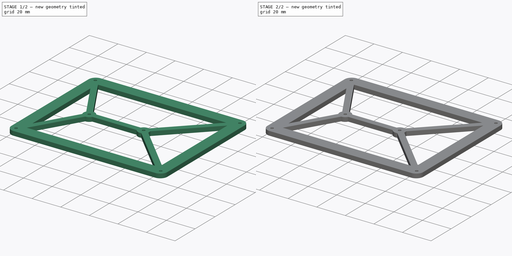
[diagram: build sequence overview — one tinted view per stage of 2, left to right]
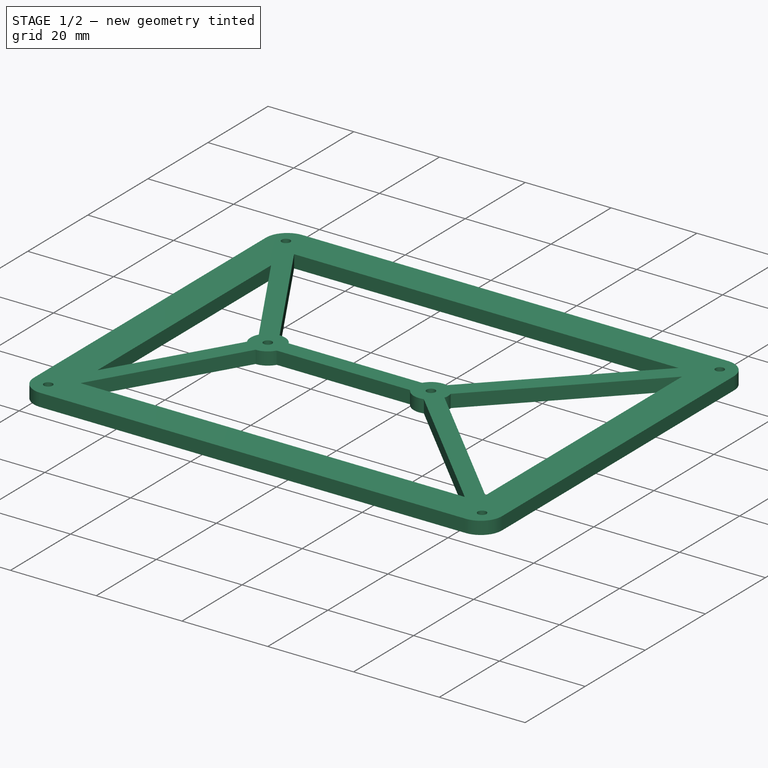
[diagram: stage 1 of 2 — iso view after this stage's code; geometry added in this stage tinted green]
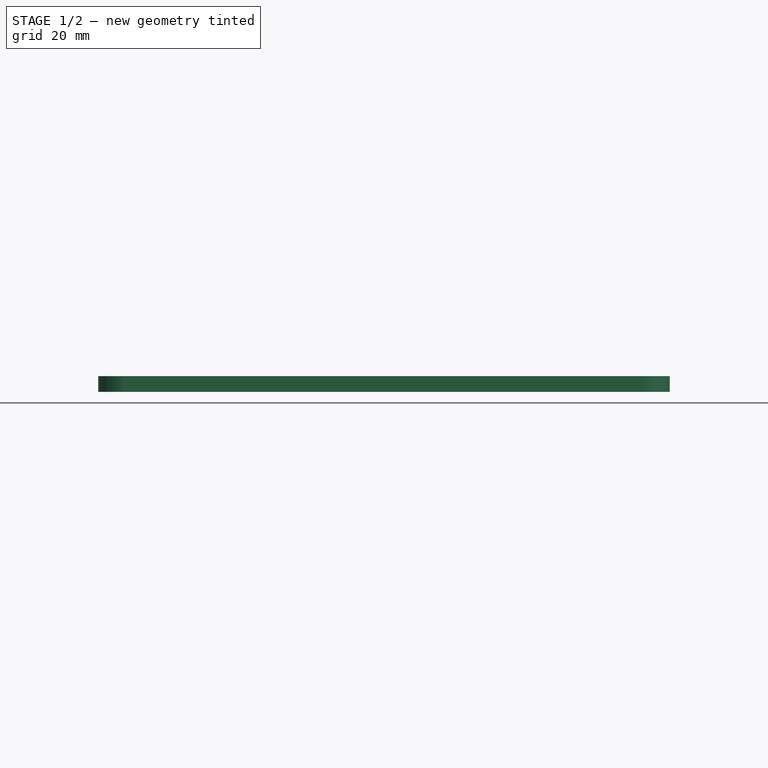
[diagram: stage 1 of 2 — front view after this stage's code; geometry added in this stage tinted green]
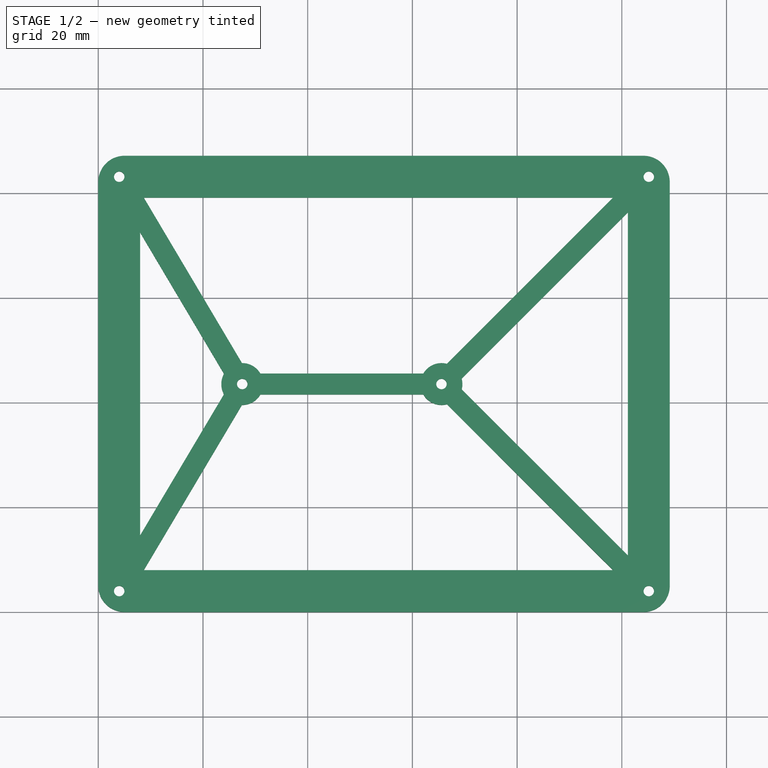
[diagram: stage 1 of 2 — top view after this stage's code; geometry added in this stage tinted green]
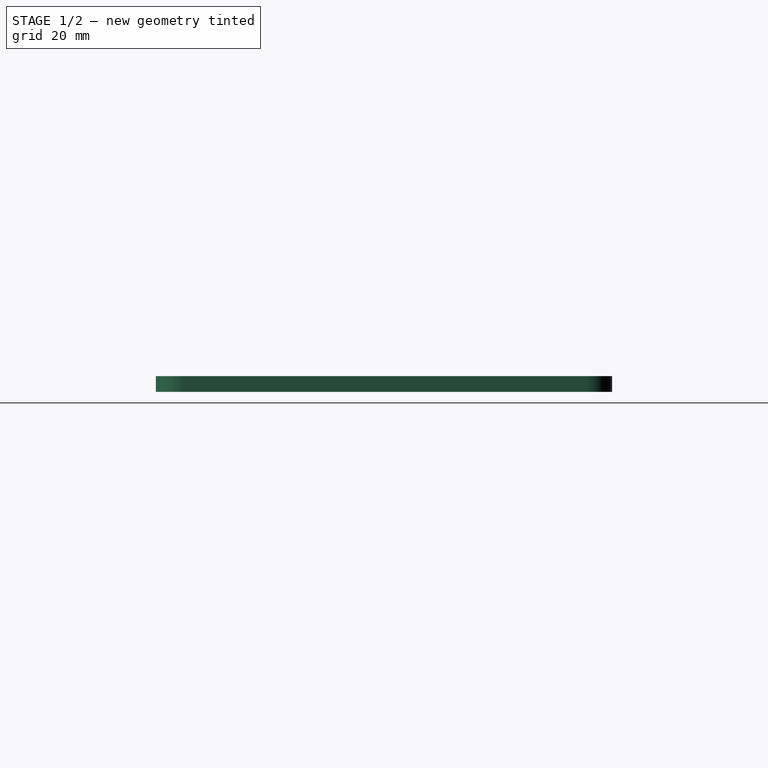
[diagram: stage 1 of 2 — right view after this stage's code; geometry added in this stage tinted green]
FCSTD DOCUMENT  (FreeCAD 1.0R39319 (Git))
Label: Jomiepad_Bottom
License: All rights reserved
LicenseURL: https://en.wikipedia.org/wiki/All_rights_reserved
objects: Sketcher::SketchObject×2, PartDesign::Pad×1, PartDesign::Pocket×1, PartDesign::Body×1
note: 11 computed .brp shape members not serialized (recipe doc carries the construction recipe); baked Part::Feature solids carry a one-line shape summary decoded from their .brp

FEATURE [Sketcher::SketchObject] Sketch002
  ArcFitTolerance = 1e-06
  AttachmentSupport = -> [XY_Plane001]
  FullyConstrained = true
  MakeInternals = false
  MapMode = 5
  sketch-geometry (47):
    g0: LineSegment StartX=129.15 StartY=25 StartZ=0 EndX=129.15 EndY=102.15 EndZ=0
    g1: LineSegment StartX=124.15 StartY=107.15 StartZ=0 EndX=25 EndY=107.15 EndZ=0
    g2: LineSegment StartX=20 StartY=102.15 StartZ=0 EndX=20 EndY=25 EndZ=0
    g3: LineSegment StartX=25 StartY=20 StartZ=0 EndX=124.15 EndY=20 EndZ=0
    g4: ArcOfCircle CenterX=124.15 CenterY=25 CenterZ=0 NormalX=0 NormalY=0 NormalZ=1 AngleXU=0 Radius=5 StartAngle=4.71239 EndAngle=6.28319
    g5: ArcOfCircle CenterX=124.15 CenterY=102.15 CenterZ=0 NormalX=0 NormalY=0 NormalZ=1 AngleXU=0 Radius=5 StartAngle=5e-16 EndAngle=1.5708
    g6: ArcOfCircle CenterX=25 CenterY=102.15 CenterZ=0 NormalX=0 NormalY=0 NormalZ=1 AngleXU=0 Radius=5 StartAngle=1.5708 EndAngle=3.14159
    g7: ArcOfCircle CenterX=25 CenterY=25 CenterZ=0 NormalX=0 NormalY=0 NormalZ=1 AngleXU=0 Radius=5 StartAngle=3.14159 EndAngle=4.71239
    g8: GeomPoint [constr] X=129.15 Y=20 Z=0
    g9: GeomPoint [constr] X=20 Y=107.15 Z=0
    g10: Circle CenterX=24 CenterY=103.15 CenterZ=0 NormalX=0 NormalY=0 NormalZ=1 AngleXU=0 Radius=1
    g11: Circle CenterX=24 CenterY=24 CenterZ=0 NormalX=0 NormalY=0 NormalZ=1 AngleXU=0 Radius=1
    g12: Circle CenterX=125.15 CenterY=24 CenterZ=0 NormalX=0 NormalY=0 NormalZ=1 AngleXU=0 Radius=1
    g13: Circle CenterX=125.15 CenterY=103.15 CenterZ=0 NormalX=0 NormalY=0 NormalZ=1 AngleXU=0 Radius=1
    g14: Circle CenterX=85.55 CenterY=63.55 CenterZ=0 NormalX=0 NormalY=0 NormalZ=1 AngleXU=0 Radius=1
    g15: Circle CenterX=47.5 CenterY=63.55 CenterZ=0 NormalX=0 NormalY=0 NormalZ=1 AngleXU=0 Radius=1
    g16: Circle [constr] CenterX=24 CenterY=24 CenterZ=0 NormalX=0 NormalY=0 NormalZ=1 AngleXU=0 Radius=2
    g17: Circle [constr] CenterX=24 CenterY=103.15 CenterZ=0 NormalX=0 NormalY=0 NormalZ=1 AngleXU=0 Radius=2
    g18: Circle [constr] CenterX=47.5 CenterY=63.55 CenterZ=0 NormalX=0 NormalY=0 NormalZ=1 AngleXU=0 Radius=2
    g19: Circle [constr] CenterX=85.55 CenterY=63.55 CenterZ=0 NormalX=0 NormalY=0 NormalZ=1 AngleXU=0 Radius=2
    g20: Circle [constr] CenterX=125.15 CenterY=103.15 CenterZ=0 NormalX=0 NormalY=0 NormalZ=1 AngleXU=0 Radius=2
    g21: Circle [constr] CenterX=125.15 CenterY=24 CenterZ=0 NormalX=0 NormalY=0 NormalZ=1 AngleXU=0 Radius=2
    g22: ArcOfCircle CenterX=47.5 CenterY=63.55 CenterZ=0 NormalX=0 NormalY=0 NormalZ=1 AngleXU=0 Radius=4 StartAngle=0.523599 EndAngle=1.58278
    g23: ArcOfCircle CenterX=85.55 CenterY=63.55 CenterZ=0 NormalX=0 NormalY=0 NormalZ=1 AngleXU=0 Radius=4 StartAngle=3.66519 EndAngle=4.97482
    g24: LineSegment StartX=50.9641 StartY=65.55 StartZ=0 EndX=82.0859 EndY=65.55 EndZ=0
    g25: LineSegment StartX=50.9641 StartY=61.55 StartZ=0 EndX=82.0859 EndY=61.55 EndZ=0
    g26: LineSegment [constr] StartX=47.5 StartY=63.55 StartZ=0 EndX=85.55 EndY=63.55 EndZ=0
    g27: LineSegment StartX=47.4499 StartY=59.5503 StartZ=0 EndX=28.7032 EndY=28 EndZ=0
    g28: LineSegment StartX=28.7032 StartY=28 StartZ=0 EndX=118.315 EndY=28 EndZ=0
    g29: LineSegment StartX=118.315 StartY=28 StartZ=0 EndX=86.5877 EndY=59.687 EndZ=0
    g30: LineSegment StartX=89.4144 StartY=62.5172 StartZ=0 EndX=121.15 EndY=30.8216 EndZ=0
    g31: LineSegment StartX=121.15 StartY=30.8216 StartZ=0 EndX=121.15 EndY=96.3216 EndZ=0
    g32: LineSegment StartX=121.15 StartY=96.3216 StartZ=0 EndX=89.4137 EndY=64.5853 EndZ=0
    g33: LineSegment StartX=86.5853 StartY=67.4137 StartZ=0 EndX=118.322 EndY=99.15 EndZ=0
    g34: LineSegment StartX=118.322 StartY=99.15 StartZ=0 EndX=28.6994 EndY=99.15 EndZ=0
    g35: LineSegment StartX=28.6994 StartY=99.15 StartZ=0 EndX=47.4521 EndY=67.5497 EndZ=0
    g36: LineSegment StartX=44.0122 StartY=65.5084 StartZ=0 EndX=28 EndY=92.4906 EndZ=0
    g37: LineSegment StartX=28 StartY=92.4906 StartZ=0 EndX=28 EndY=34.6472 EndZ=0
    g38: LineSegment StartX=28 StartY=34.6472 StartZ=0 EndX=44.0111 EndY=61.5936 EndZ=0
    g39: LineSegment [constr] StartX=24 StartY=103.15 StartZ=0 EndX=47.5 EndY=63.55 EndZ=0
    g40: LineSegment [constr] StartX=47.5 StartY=63.55 StartZ=0 EndX=24 EndY=24 EndZ=0
    g41: LineSegment [constr] StartX=85.55 StartY=63.55 StartZ=0 EndX=125.15 EndY=103.15 EndZ=0
    g42: LineSegment [constr] StartX=85.55 StartY=63.55 StartZ=0 EndX=125.15 EndY=24 EndZ=0
    g43: ArcOfCircle CenterX=85.55 CenterY=63.55 CenterZ=0 NormalX=0 NormalY=0 NormalZ=1 AngleXU=0 Radius=4 StartAngle=6.02202 EndAngle=6.54498
    g44: ArcOfCircle CenterX=85.55 CenterY=63.55 CenterZ=0 NormalX=0 NormalY=0 NormalZ=1 AngleXU=0 Radius=4 StartAngle=1.309 EndAngle=2.61799
    g45: ArcOfCircle CenterX=47.5 CenterY=63.55 CenterZ=0 NormalX=0 NormalY=0 NormalZ=1 AngleXU=0 Radius=4 StartAngle=2.62997 EndAngle=3.65266
    g46: ArcOfCircle CenterX=47.5 CenterY=63.55 CenterZ=0 NormalX=0 NormalY=0 NormalZ=1 AngleXU=0 Radius=4 StartAngle=4.69986 EndAngle=5.75959
  constraints (125):
    c: Tangent(g0,g4) = -1.5708
    c: Tangent(g0,g5) = -1.5708
    c: Tangent(g1,g5) = -1.5708
    c: Tangent(g1,g6) = -1.5708
    c: Tangent(g2,g6) = -1.5708
    c: Tangent(g2,g7) = -1.5708
    c: Tangent(g3,g7) = -1.5708
    c: Tangent(g3,g4) = -1.5708
    c: Vertical(g0)
    c: Vertical(g2)
    c: Horizontal(g1)
    c: Horizontal(g3)
    c: Equal(g4,g5)
    c: Equal(g5,g6)
    c: Equal(g6,g7)
    c: PointOnObject(g8,g0)
    c: PointOnObject(g8,g3)
    c: PointOnObject(g9,g1)
    c: PointOnObject(g9,g2)
    c: Radius(g5) = 5
    c: Diameter(g10) = 2
    c: Distance(g10,g1) = 4
    c: Distance(g10,g2) = 4
    c: Diameter(g11) = 2
    c: Distance(g11,g3) = 4
    c: Distance(g11,g2) = 4
    c: Diameter(g12) = 2
    c: Distance(g12,g3) = 4
    c: Distance(g12,g0) = 4
    c: Diameter(g13) = 2
    c: Distance(g13,g1) = 4
    c: Distance(g13,g0) = 4
    c: Diameter(g14) = 2
    c: Diameter(g15) = 2
    c: Horizontal(g15,g14)
    c: Diameter(g16) = 4
    c: Coincident(g16,g11)
    c: Diameter(g17) = 4
    c: Coincident(g17,g10)
    c: Diameter(g18) = 4
    c: Coincident(g18,g15)
    c: Diameter(g19) = 4
    c: Coincident(g19,g14)
    c: Diameter(g20) = 4
    c: Coincident(g20,g13)
    c: Diameter(g21) = 4
    c: Coincident(g21,g12)
    c: Distance(g0,g2) = 109.15
    c: Distance(g1,g3) = 87.15
    c: Distance(g15,g1) = 43.6
    c: Distance(g15,g2) = 27.5
    c: Distance(g14,g0) = 43.6
    c: Distance(g-1,g3) = 20
    c: Distance(g-2,g2) = 20
    c: Diameter(g22) = 8
    c: Coincident(g22,g15)
    c: Diameter(g23) = 8
    c: Coincident(g23,g14)
    c: Horizontal(g24)
    c: Horizontal(g25)
    c: Distance(g25,g24) = 4
    c: Coincident(g26,g15)
    c: Coincident(g26,g14)
    c: Distance(g24,g26) = 2
    c: Coincident(g44,g24)
    c: Coincident(g23,g25)
    c: Coincident(g22,g24)
    c: Coincident(g46,g25)
    c: PointOnObject(g27,g46)
    c: Coincident(g27,g28)
    c: Horizontal(g28)
    c: Coincident(g28,g29)
    c: Coincident(g30,g31)
    c: Vertical(g31)
    c: Coincident(g31,g32)
    c: Coincident(g33,g34)
    c: Horizontal(g34)
    c: Coincident(g34,g35)
    c: Coincident(g36,g37)
    c: Vertical(g37)
    c: Coincident(g37,g38)
    c: Distance(g3,g28) = 8
    c: Distance(g0,g31) = 8
    c: Distance(g34,g1) = 8
    c: Distance(g2,g37) = 8
    c: Coincident(g39,g10)
    c: Coincident(g39,g15)
    c: Parallel(g36,g39)
    c: Parallel(g39,g35)
    c: Distance(g36,g35) = 4
    c: Distance(g35,g39) = 2
    c: Coincident(g40,g15)
    c: Coincident(g40,g11)
    c: Parallel(g38,g40)
    c: Parallel(g40,g27)
    c: Distance(g38,g27) = 4
    c: Distance(g38,g40) = 2
    c: Coincident(g41,g14)
    c: Coincident(g41,g13)
    c: Coincident(g42,g14)
    c: Coincident(g42,g12)
    c: Parallel(g41,g33)
    c: Parallel(g41,g32)
    c: Distance(g32,g33) = 4
    c: Distance(g33,g41) = 2
    c: Parallel(g42,g30)
    c: Parallel(g42,g29)
    c: Distance(g29,g30) = 4
    c: Distance(g30,g42) = 2
    c: Equal(g23,g43)
    c: Coincident(g23,g29)
    c: Coincident(g23,g43)
    c: Coincident(g43,g30)
    c: Equal(g43,g44)
    c: Coincident(g43,g32)
    c: Coincident(g43,g44)
    c: Coincident(g44,g33)
    c: Equal(g22,g45)
    c: Coincident(g22,g35)
    c: Coincident(g22,g45)
    c: Coincident(g45,g36)
    c: Equal(g45,g46)
    c: PointOnObject(g46,g27)
    c: Coincident(g45,g46)
    c: Coincident(g45,g38)
FEATURE [PartDesign::Pad] Pad001
  Direction = (0,0,1)
  Length = 3
  Length2 = 10
  Profile = -> Sketch002
  ReferenceAxis = -> Sketch002 [N_Axis]
  Refine = true
  Suppressed = false
  Type = 0
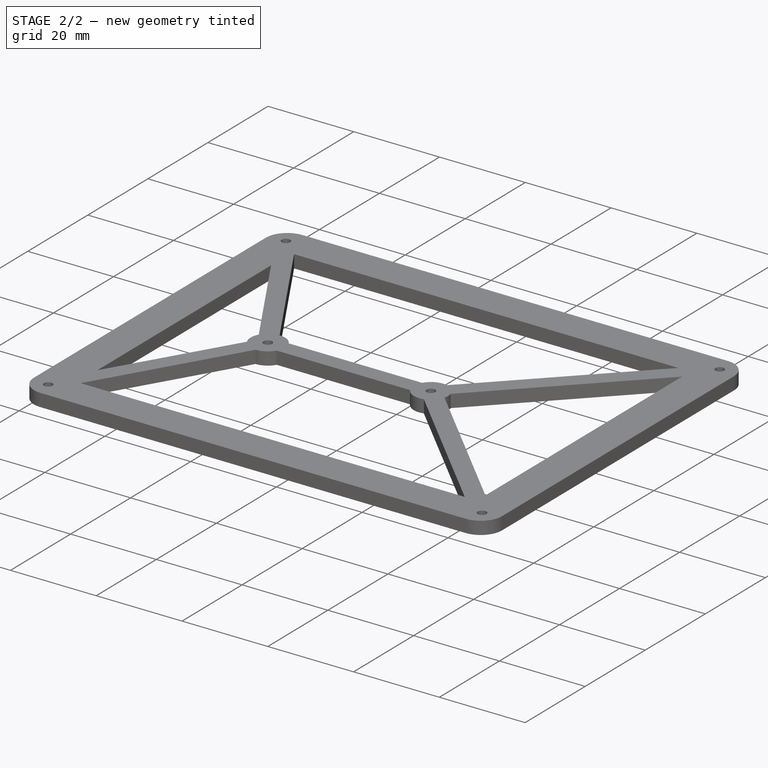
[diagram: stage 2 of 2 — iso view after this stage's code; geometry added in this stage tinted green]
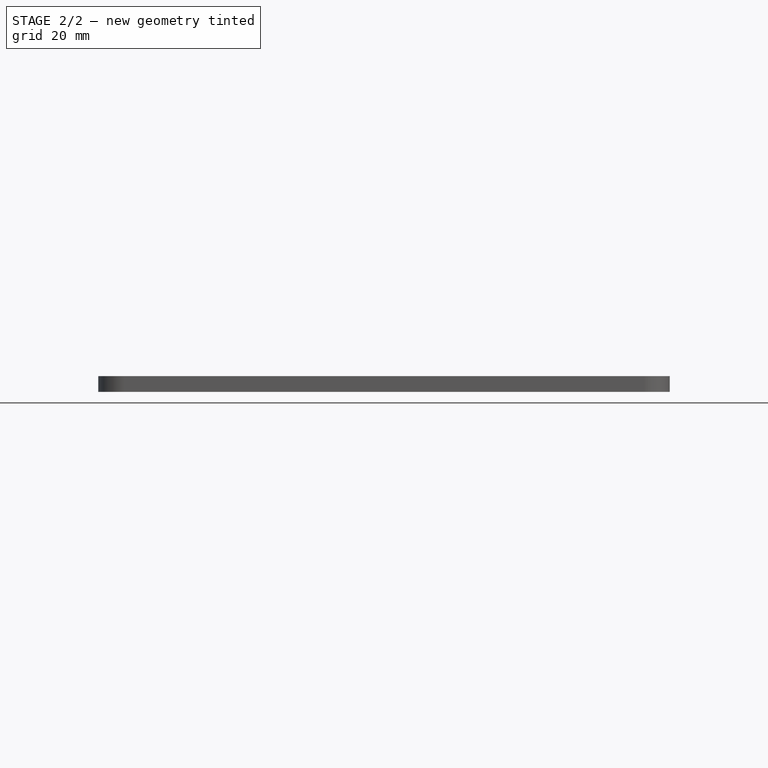
[diagram: stage 2 of 2 — front view after this stage's code; geometry added in this stage tinted green]
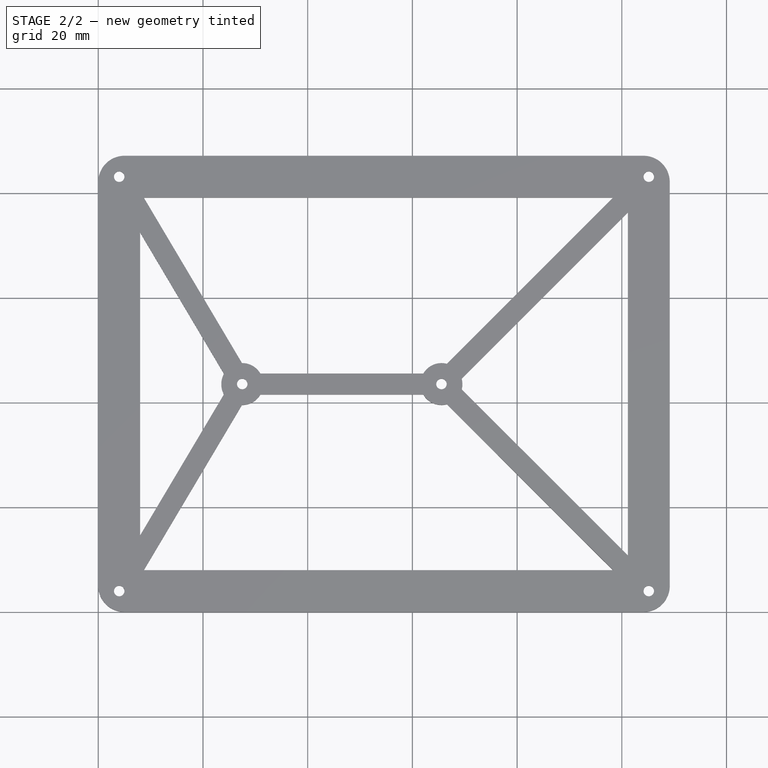
[diagram: stage 2 of 2 — top view after this stage's code; geometry added in this stage tinted green]
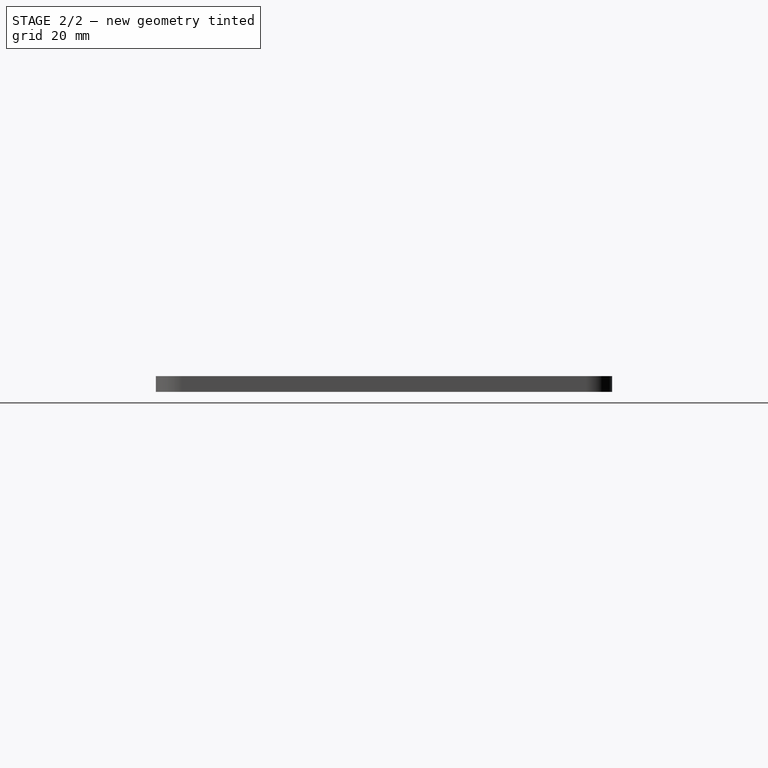
[diagram: stage 2 of 2 — right view after this stage's code; geometry added in this stage tinted green]
FEATURE [Sketcher::SketchObject] Sketch003
  ArcFitTolerance = 1e-06
  AttachmentSupport = -> [XY_Plane001]
  FullyConstrained = false
  MakeInternals = false
  MapMode = 5
  sketch-geometry (19):
    g0: GeomPoint [constr] X=129.15 Y=20 Z=0
    g1: GeomPoint [constr] X=20 Y=107.15 Z=0
    g2: Circle CenterX=24 CenterY=103.15 CenterZ=0 NormalX=0 NormalY=0 NormalZ=1 AngleXU=0 Radius=2
    g3: Circle CenterX=24 CenterY=24 CenterZ=0 NormalX=0 NormalY=0 NormalZ=1 AngleXU=0 Radius=2
    g4: Circle CenterX=125.15 CenterY=24 CenterZ=0 NormalX=0 NormalY=0 NormalZ=1 AngleXU=0 Radius=2
    g5: Circle CenterX=125.15 CenterY=103.15 CenterZ=0 NormalX=0 NormalY=0 NormalZ=1 AngleXU=0 Radius=2
    g6: Circle CenterX=85.55 CenterY=63.55 CenterZ=0 NormalX=0 NormalY=0 NormalZ=1 AngleXU=0 Radius=2
    g7: Circle CenterX=47.5 CenterY=63.55 CenterZ=0 NormalX=0 NormalY=0 NormalZ=1 AngleXU=0 Radius=2
    g8: Circle [constr] CenterX=24 CenterY=24 CenterZ=0 NormalX=0 NormalY=0 NormalZ=1 AngleXU=0 Radius=2
    g9: Circle [constr] CenterX=24 CenterY=103.15 CenterZ=0 NormalX=0 NormalY=0 NormalZ=1 AngleXU=0 Radius=2
    g10: Circle [constr] CenterX=47.5 CenterY=63.55 CenterZ=0 NormalX=0 NormalY=0 NormalZ=1 AngleXU=0 Radius=2
    g11: Circle [constr] CenterX=85.55 CenterY=63.55 CenterZ=0 NormalX=0 NormalY=0 NormalZ=1 AngleXU=0 Radius=2
    g12: Circle [constr] CenterX=125.15 CenterY=103.15 CenterZ=0 NormalX=0 NormalY=0 NormalZ=1 AngleXU=0 Radius=2
    g13: Circle [constr] CenterX=125.15 CenterY=24 CenterZ=0 NormalX=0 NormalY=0 NormalZ=1 AngleXU=0 Radius=2
    g14: LineSegment [constr] StartX=47.5 StartY=63.55 StartZ=0 EndX=85.55 EndY=63.55 EndZ=0
    g15: LineSegment [constr] StartX=24 StartY=103.15 StartZ=0 EndX=47.5 EndY=63.55 EndZ=0
    g16: LineSegment [constr] StartX=47.5 StartY=63.55 StartZ=0 EndX=24 EndY=24 EndZ=0
    g17: LineSegment [constr] StartX=85.55 StartY=63.55 StartZ=0 EndX=125.15 EndY=103.15 EndZ=0
    g18: LineSegment [constr] StartX=85.55 StartY=63.55 StartZ=0 EndX=125.15 EndY=24 EndZ=0
  constraints (29):
    c: Diameter(g2) = 4
    c: Diameter(g3) = 4
    c: Diameter(g4) = 4
    c: Diameter(g5) = 4
    c: Diameter(g6) = 4
    c: Diameter(g7) = 4
    c: Horizontal(g7,g6)
    c: Diameter(g8) = 4
    c: Coincident(g8,g3)
    c: Diameter(g9) = 4
    c: Coincident(g9,g2)
    c: Diameter(g10) = 4
    c: Coincident(g10,g7)
    c: Diameter(g11) = 4
    c: Coincident(g11,g6)
    c: Diameter(g12) = 4
    c: Coincident(g12,g5)
    c: Diameter(g13) = 4
    c: Coincident(g13,g4)
    c: Coincident(g14,g7)
    c: Coincident(g14,g6)
    c: Coincident(g15,g2)
    c: Coincident(g15,g7)
    c: Coincident(g16,g7)
    c: Coincident(g16,g3)
    c: Coincident(g17,g6)
    c: Coincident(g17,g5)
    c: Coincident(g18,g6)
    c: Coincident(g18,g4)
FEATURE [PartDesign::Pocket] Pocket001
  BaseFeature = -> Pad001
  Direction = (0,0,-1)
  Length = 1
  Length2 = 1
  Offset = 2
  Profile = -> Sketch003
  ReferenceAxis = -> Sketch003 [N_Axis]
  Refine = true
  Reversed = true
  Suppressed = false
  Type = 0
FEATURE [PartDesign::Body] Body001
  AllowCompound = false
  Group = -> [Sketch002,Pad001,Sketch003,Pocket001]
  Origin = -> Origin001
  Tip = -> Pocket001
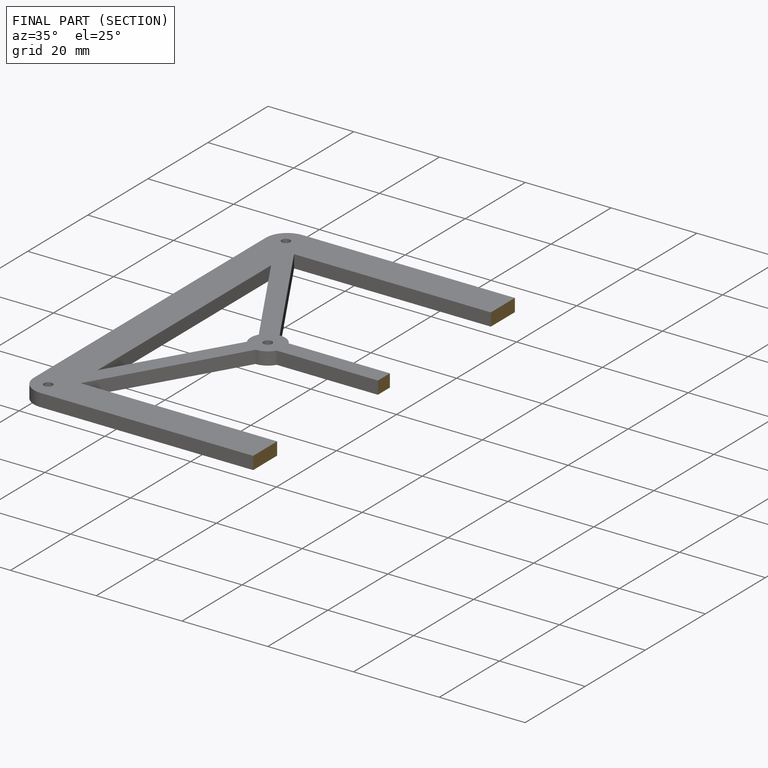
[diagram: finished part — half-section view (interior)]
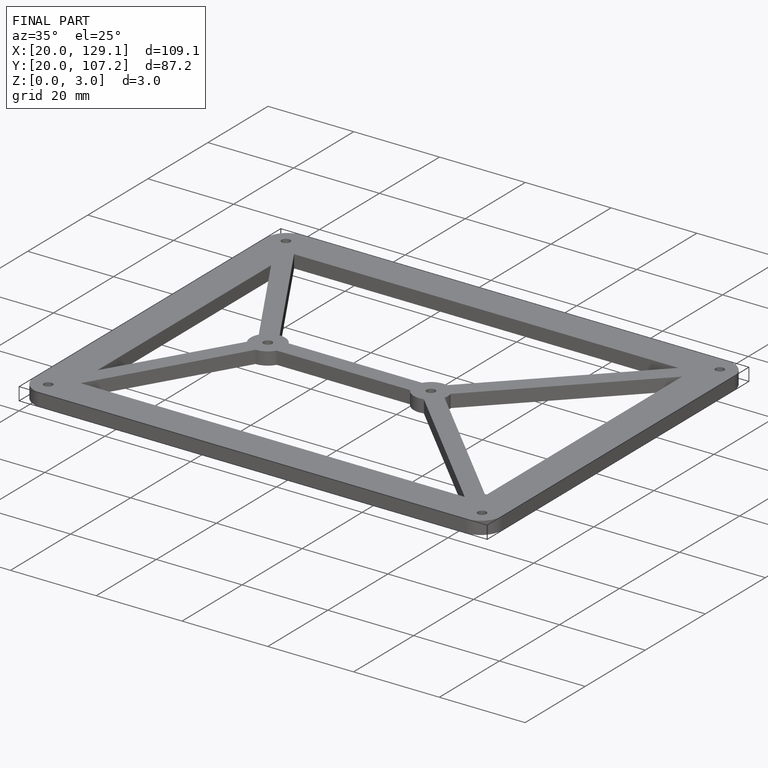
[diagram: finished part — iso view with bounding-box wireframe]
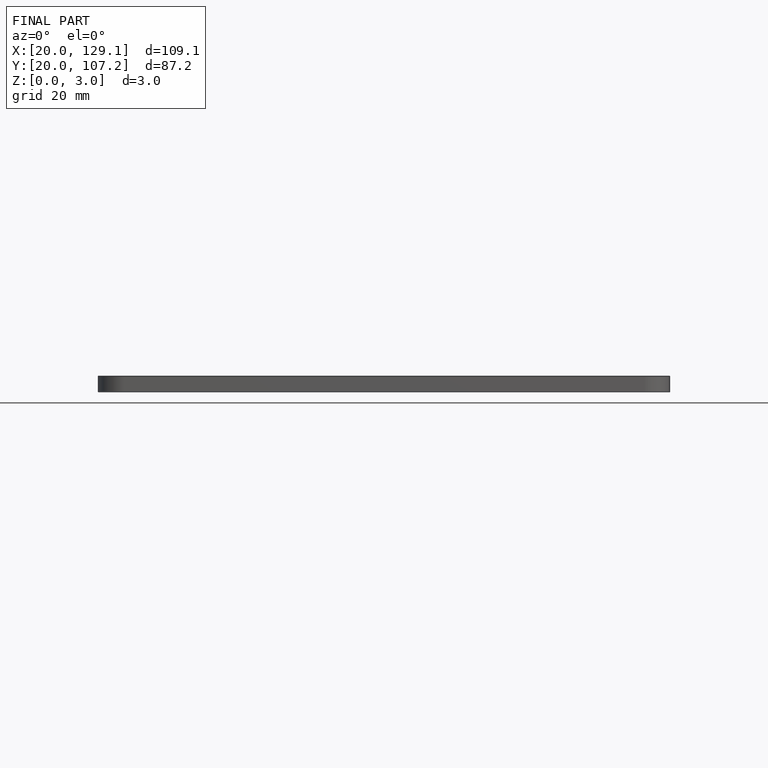
[diagram: finished part — front view with bounding-box wireframe]
